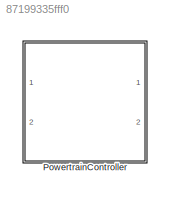
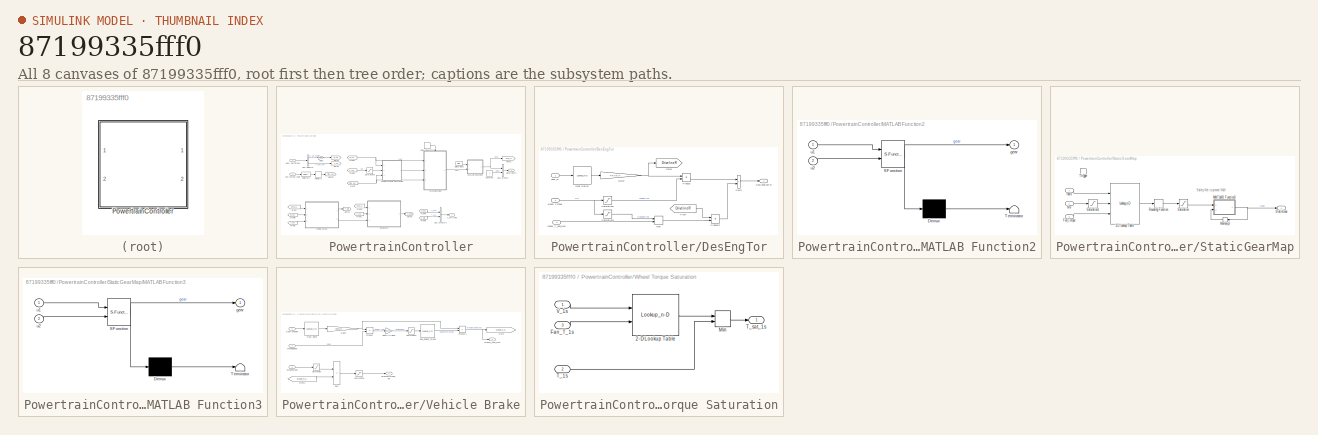
[diagram: thumbnail index - all 8 canvases of the model, root first then tree order]
MODEL slx_87199335fff0
KIND library
CONFIG AbsTol = auto
CONFIG EnableMultiTasking = off
CONFIG FixedStep = auto
CONFIG MaxStep = auto
CONFIG MinStep = auto
CONFIG RelTol = 1e-3
CONFIG SampleTimeConstraint = Unconstrained
CONFIG Solver = VariableStepAuto
CONFIG SolverName = VariableStepAuto
CONFIG StartTime = 0.0
CONFIG StopTime = 10.0
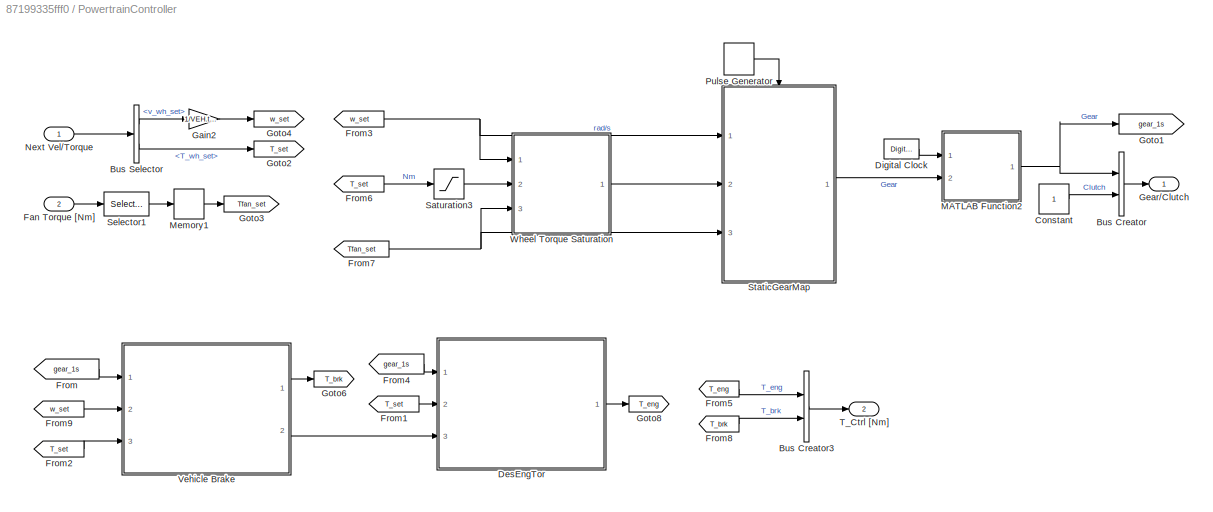
BLOCK [SubSystem] PowertrainController
  Ports = [2, 2]
  RequestExecContextInheritance = off
BLOCK [BusCreator] PowertrainController/Bus Creator
  DisplayOption = bar
  InheritFromInputs = on
  Inputs = Gear,Clutch
  Ports = [2, 1]
BLOCK [BusCreator] PowertrainController/Bus Creator3
  DisplayOption = bar
  InheritFromInputs = on
  Inputs = 2
  Ports = [2, 1]
BLOCK [BusSelector] PowertrainController/Bus Selector
  OutputSignals = v_wh_set,T_wh_set
  Ports = [1, 2]
BLOCK [Constant] PowertrainController/Constant
BLOCK [SubSystem] PowertrainController/DesEngTor
  Ports = [3, 1]
  RequestExecContextInheritance = off
BLOCK [Outport] PowertrainController/DesEngTor/DesiredEngTor
  VectorParamsAs1DForOutWhenUnconnected = off
BLOCK [From] PowertrainController/DesEngTor/From
  GotoTag = DrivelineR
BLOCK [Gain] PowertrainController/DesEngTor/Gain2
  Gain = TRAN.finalDrive
BLOCK [Lookup_n-D] PowertrainController/DesEngTor/Gear Ratios
  BreakpointsForDimension1 = [1:TRAN.numGears]
  ExtrapMethod = Clip
  InternalRulePriority = Speed
  NumberOfTableDimensions = 1
  Ports = [1, 1]
  RndMeth = Simplest
  Table = TRAN.gears
  UseLastTableValue = on
BLOCK [Goto] PowertrainController/DesEngTor/Goto1
  GotoTag = DrivelineR
BLOCK [MinMax] PowertrainController/DesEngTor/Max
  Function = max
  Inputs = 2
  Ports = [2, 1]
BLOCK [Product] PowertrainController/DesEngTor/Product
  Inputs = /*
  Ports = [2, 1]
BLOCK [Product] PowertrainController/DesEngTor/Product3
  Inputs = /*
  Ports = [2, 1]
BLOCK [Saturate] PowertrainController/DesEngTor/Saturation2
  LowerLimit = 0
  UpperLimit = inf
BLOCK [Saturate] PowertrainController/DesEngTor/Saturation3
  LowerLimit = -inf
  UpperLimit = 0
BLOCK [Sum] PowertrainController/DesEngTor/Sum1
  IconShape = rectangular
  Ports = [2, 1]
BLOCK [Inport] PowertrainController/DesEngTor/Wheel_T_eng_Max
  Port = 3
BLOCK [Inport] PowertrainController/DesEngTor/gear_1s
BLOCK [Inport] PowertrainController/DesEngTor/wheel Torque
  Port = 2
BLOCK [DigitalClock] PowertrainController/Digital Clock
BLOCK [Inport] PowertrainController/Fan Torque [Nm]
  Port = 2
BLOCK [From] PowertrainController/From
  GotoTag = gear_1s
BLOCK [From] PowertrainController/From1
  GotoTag = T_set
BLOCK [From] PowertrainController/From2
  GotoTag = T_set
BLOCK [From] PowertrainController/From3
  GotoTag = w_set
BLOCK [From] PowertrainController/From4
  GotoTag = gear_1s
BLOCK [From] PowertrainController/From5
  GotoTag = T_eng
BLOCK [From] PowertrainController/From6
  GotoTag = T_set
BLOCK [From] PowertrainController/From7
  GotoTag = Tfan_set
BLOCK [From] PowertrainController/From8
  GotoTag = T_brk
BLOCK [From] PowertrainController/From9
  GotoTag = w_set
BLOCK [Gain] PowertrainController/Gain2
  Gain = 1/VEH.tireRad
BLOCK [Outport] PowertrainController/Gear//Clutch
  VectorParamsAs1DForOutWhenUnconnected = off
BLOCK [Goto] PowertrainController/Goto1
  GotoTag = gear_1s
BLOCK [Goto] PowertrainController/Goto2
  GotoTag = T_set
BLOCK [Goto] PowertrainController/Goto3
  GotoTag = Tfan_set
BLOCK [Goto] PowertrainController/Goto4
  GotoTag = w_set
BLOCK [Goto] PowertrainController/Goto6
  GotoTag = T_brk
BLOCK [Goto] PowertrainController/Goto8
  GotoTag = T_eng
BLOCK [SubSystem] PowertrainController/MATLAB Function2
  ErrorFcn = Stateflow.Translate.translate
  PermitHierarchicalResolution = ExplicitOnly
  Ports = [2, 1]
  RequestExecContextInheritance = off
  SFBlockType = MATLAB Function
  TreatAsAtomicUnit = on
BLOCK [Demux] PowertrainController/MATLAB Function2/ Demux 
  Outputs = 1
  Ports = [1, 1]
BLOCK [S-Function] PowertrainController/MATLAB Function2/ SFunction 
  EnableBusSupport = on
  FunctionName = sf_sfun
  PortCounts = [2 2]
  Ports = [2, 2]
  SFcnIsStateOwnerBlock = off
  SFunctionDeploymentMode = off
  Tag = Stateflow S-Function 3
BLOCK [Terminator] PowertrainController/MATLAB Function2/ Terminator 
BLOCK [Outport] PowertrainController/MATLAB Function2/gear
  VectorParamsAs1DForOutWhenUnconnected = off
BLOCK [Inport] PowertrainController/MATLAB Function2/u1
BLOCK [Inport] PowertrainController/MATLAB Function2/u2
  Port = 2
BLOCK [Memory] PowertrainController/Memory1
  InheritSampleTime = on
BLOCK [Inport] PowertrainController/Next Vel//Torque
BLOCK [DiscretePulseGenerator] PowertrainController/Pulse Generator
  Period = 7
  Ports = [0, 1]
  PulseType = Time based
BLOCK [Saturate] PowertrainController/Saturation3
  LowerLimit = 0
  UpperLimit = inf
BLOCK [Selector] PowertrainController/Selector1
  IndexOptions = Index vector (dialog)
  Indices = [1]
  InputPortWidth = 1
  OutputSizes = 1
  Ports = [1, 1]
BLOCK [SubSystem] PowertrainController/StaticGearMap
  Ports = [3, 1, 0, 1]
  RequestExecContextInheritance = off
BLOCK [Lookup_n-D] PowertrainController/StaticGearMap/3-D Lookup Table
  BreakpointsForDimension1 = dem_wheel_speed
  BreakpointsForDimension2 = dem_wheel_torque
  BreakpointsForDimension3 = tau_acc
  InternalRulePriority = Speed
  NumberOfTableDimensions = 3
  Ports = [3, 1]
  RndMeth = Simplest
  Table = best_gear
BLOCK [Inport] PowertrainController/StaticGearMap/Fan_Torque
  Port = 3
BLOCK [SubSystem] PowertrainController/StaticGearMap/MATLAB Function3
  ErrorFcn = Stateflow.Translate.translate
  PermitHierarchicalResolution = ExplicitOnly
  Ports = [2, 1]
  RequestExecContextInheritance = off
  SFBlockType = MATLAB Function
  TreatAsAtomicUnit = on
BLOCK [Demux] PowertrainController/StaticGearMap/MATLAB Function3/ Demux 
  Outputs = 1
  Ports = [1, 1]
BLOCK [S-Function] PowertrainController/StaticGearMap/MATLAB Function3/ SFunction 
  EnableBusSupport = on
  FunctionName = sf_sfun
  PortCounts = [2 2]
  Ports = [2, 2]
  SFcnIsStateOwnerBlock = off
  SFunctionDeploymentMode = off
  Tag = Stateflow S-Function 8
BLOCK [Terminator] PowertrainController/StaticGearMap/MATLAB Function3/ Terminator 
BLOCK [Outport] PowertrainController/StaticGearMap/MATLAB Function3/gear
  VectorParamsAs1DForOutWhenUnconnected = off
BLOCK [Inport] PowertrainController/StaticGearMap/MATLAB Function3/u1
BLOCK [Inport] PowertrainController/StaticGearMap/MATLAB Function3/u2
  Port = 2
BLOCK [Memory] PowertrainController/StaticGearMap/Memory3
  InheritSampleTime = on
  InitialCondition = 11
BLOCK [Inport] PowertrainController/StaticGearMap/Nm
  Port = 2
BLOCK [Rounding] PowertrainController/StaticGearMap/Rounding Function
  Operator = round
BLOCK [Saturate] PowertrainController/StaticGearMap/Saturation
  LowerLimit = 1
  UpperLimit = 12
BLOCK [Saturate] PowertrainController/StaticGearMap/Saturation1
  LowerLimit = 0
  UpperLimit = inf
BLOCK [Outport] PowertrainController/StaticGearMap/StaticGear
  VectorParamsAs1DForOutWhenUnconnected = off
BLOCK [TriggerPort] PowertrainController/StaticGearMap/Trigger
  PortDimensions = 1
  Ports = []
  StatesWhenEnabling = held
  VariantControl = Variant
BLOCK [Inport] PowertrainController/StaticGearMap/rad//s
BLOCK [Outport] PowertrainController/T_Ctrl [Nm]
  Port = 2
  VectorParamsAs1DForOutWhenUnconnected = off
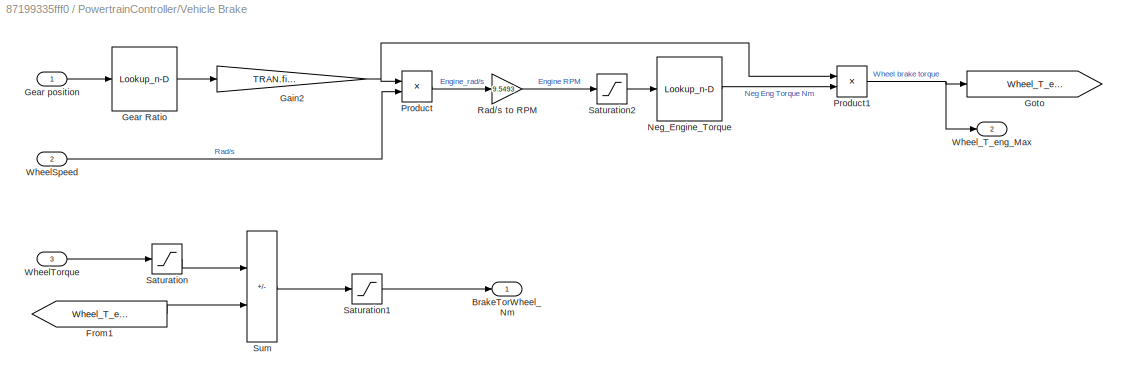
BLOCK [SubSystem] PowertrainController/Vehicle Brake
  Ports = [3, 2]
  RequestExecContextInheritance = off
BLOCK [Outport] PowertrainController/Vehicle Brake/BrakeTorWheel_Nm
  VectorParamsAs1DForOutWhenUnconnected = off
BLOCK [From] PowertrainController/Vehicle Brake/From1
  GotoTag = Wheel_T_eng_Max
BLOCK [Gain] PowertrainController/Vehicle Brake/Gain2
  Gain = TRAN.finalDrive
BLOCK [Lookup_n-D] PowertrainController/Vehicle Brake/Gear Ratio
  BreakpointsForDimension1 = [1 2 3 4 5 6 7 8 9 10 11 12]
  BreakpointsForDimension2 = [1:3]
  InternalRulePriority = Speed
  NumberOfTableDimensions = 1
  Ports = [1, 1]
  RndMeth = Simplest
  Table = [11.73 9.21 7.09 5.57 4.34 3.41 2.69 2.12 1.63 1.28 1 0.7850]
BLOCK [Inport] PowertrainController/Vehicle Brake/Gear position
BLOCK [Goto] PowertrainController/Vehicle Brake/Goto
  GotoTag = Wheel_T_eng_Max
BLOCK [Lookup_n-D] PowertrainController/Vehicle Brake/Neg_Engine_Torque
  BreakpointsForDimension1 = Neg_RPM
  BreakpointsForDimension2 = [1:3]
  InternalRulePriority = Speed
  NumberOfTableDimensions = 1
  Ports = [1, 1]
  RndMeth = Simplest
  Table = Neg_T_eng_Nm
BLOCK [Product] PowertrainController/Vehicle Brake/Product
  Ports = [2, 1]
BLOCK [Product] PowertrainController/Vehicle Brake/Product1
  Ports = [2, 1]
BLOCK [Gain] PowertrainController/Vehicle Brake/Rad//s to RPM
  Gain = 9.5493
BLOCK [Saturate] PowertrainController/Vehicle Brake/Saturation
  LowerLimit = -inf
  UpperLimit = 0
BLOCK [Saturate] PowertrainController/Vehicle Brake/Saturation1
  LowerLimit = 0
  UpperLimit = inf
BLOCK [Saturate] PowertrainController/Vehicle Brake/Saturation2
  LowerLimit = 0
  UpperLimit = 2100
BLOCK [Sum] PowertrainController/Vehicle Brake/Sum
  IconShape = rectangular
  Inputs = -+
  Ports = [2, 1]
BLOCK [Inport] PowertrainController/Vehicle Brake/WheelSpeed
  Port = 2
BLOCK [Inport] PowertrainController/Vehicle Brake/WheelTorque
  Port = 3
BLOCK [Outport] PowertrainController/Vehicle Brake/Wheel_T_eng_Max
  Port = 2
  VectorParamsAs1DForOutWhenUnconnected = off
BLOCK [SubSystem] PowertrainController/Wheel Torque Saturation
  Ports = [3, 1]
  RequestExecContextInheritance = off
BLOCK [Lookup_n-D] PowertrainController/Wheel Torque Saturation/2-D Lookup Table
  BreakpointsForDimension1 = dem_wheel_speed
  BreakpointsForDimension2 = tau_acc
  InternalRulePriority = Speed
  Ports = [2, 1]
  RndMeth = Simplest
  Table = WheelTorque_Max'
BLOCK [Inport] PowertrainController/Wheel Torque Saturation/Fan_T_1s
  Port = 3
BLOCK [MinMax] PowertrainController/Wheel Torque Saturation/Min
  Inputs = 2
  Ports = [2, 1]
BLOCK [Inport] PowertrainController/Wheel Torque Saturation/T_1s
  Port = 2
BLOCK [Outport] PowertrainController/Wheel Torque Saturation/T_sat_1s
  VectorParamsAs1DForOutWhenUnconnected = off
BLOCK [Inport] PowertrainController/Wheel Torque Saturation/V_1s
ANNOTATION PowertrainController/StaticGearMap: Safety Net to prevent NaN
LINE PowertrainController/Bus Creator3:1 -> PowertrainController/T_Ctrl [Nm]:1
LINE PowertrainController/Bus Creator:1 -> PowertrainController/Gear//Clutch:1
LINE PowertrainController/Bus Selector:1 -> PowertrainController/Gain2:1
LINE PowertrainController/Bus Selector:2 -> PowertrainController/Goto2:1
LINE PowertrainController/Constant:1 -> PowertrainController/Bus Creator:2
LINE PowertrainController/DesEngTor/From:1 -> PowertrainController/DesEngTor/Product3:1
NET PowertrainController/DesEngTor/Gain2:1 -> PowertrainController/DesEngTor/Goto1:1, PowertrainController/DesEngTor/Product:1
LINE PowertrainController/DesEngTor/Gear Ratios:1 -> PowertrainController/DesEngTor/Gain2:1
LINE PowertrainController/DesEngTor/Max:1 -> PowertrainController/DesEngTor/Product3:2
LINE PowertrainController/DesEngTor/Product3:1 -> PowertrainController/DesEngTor/Sum1:2
LINE PowertrainController/DesEngTor/Product:1 -> PowertrainController/DesEngTor/Sum1:1
LINE PowertrainController/DesEngTor/Saturation2:1 -> PowertrainController/DesEngTor/Product:2
LINE PowertrainController/DesEngTor/Saturation3:1 -> PowertrainController/DesEngTor/Max:1
LINE PowertrainController/DesEngTor/Sum1:1 -> PowertrainController/DesEngTor/DesiredEngTor:1
LINE PowertrainController/DesEngTor/Wheel_T_eng_Max:1 -> PowertrainController/DesEngTor/Max:2
LINE PowertrainController/DesEngTor/gear_1s:1 -> PowertrainController/DesEngTor/Gear Ratios:1
NET PowertrainController/DesEngTor/wheel Torque:1 -> PowertrainController/DesEngTor/Saturation2:1, PowertrainController/DesEngTor/Saturation3:1
LINE PowertrainController/DesEngTor:1 -> PowertrainController/Goto8:1
LINE PowertrainController/Digital Clock:1 -> PowertrainController/MATLAB Function2:1
LINE PowertrainController/Fan Torque [Nm]:1 -> PowertrainController/Selector1:1
LINE PowertrainController/From1:1 -> PowertrainController/DesEngTor:2
LINE PowertrainController/From2:1 -> PowertrainController/Vehicle Brake:3
NET PowertrainController/From3:1 -> PowertrainController/StaticGearMap:1, PowertrainController/Wheel Torque Saturation:1
LINE PowertrainController/From4:1 -> PowertrainController/DesEngTor:1
LINE PowertrainController/From5:1 -> PowertrainController/Bus Creator3:1
LINE PowertrainController/From6:1 -> PowertrainController/Saturation3:1
NET PowertrainController/From7:1 -> PowertrainController/StaticGearMap:3, PowertrainController/Wheel Torque Saturation:3
LINE PowertrainController/From8:1 -> PowertrainController/Bus Creator3:2
LINE PowertrainController/From9:1 -> PowertrainController/Vehicle Brake:2
LINE PowertrainController/From:1 -> PowertrainController/Vehicle Brake:1
LINE PowertrainController/Gain2:1 -> PowertrainController/Goto4:1
NET PowertrainController/MATLAB Function2:1 -> PowertrainController/Bus Creator:1, PowertrainController/Goto1:1
LINE PowertrainController/Memory1:1 -> PowertrainController/Goto3:1
LINE PowertrainController/Next Vel//Torque:1 -> PowertrainController/Bus Selector:1
LINE PowertrainController/Pulse Generator:1 -> PowertrainController/StaticGearMap:trigger
LINE PowertrainController/Saturation3:1 -> PowertrainController/Wheel Torque Saturation:2
LINE PowertrainController/Selector1:1 -> PowertrainController/Memory1:1
LINE PowertrainController/StaticGearMap/3-D Lookup Table:1 -> PowertrainController/StaticGearMap/Rounding Function:1
LINE PowertrainController/StaticGearMap/Fan_Torque:1 -> PowertrainController/StaticGearMap/3-D Lookup Table:3
NET PowertrainController/StaticGearMap/MATLAB Function3:1 -> PowertrainController/StaticGearMap/Memory3:1, PowertrainController/StaticGearMap/StaticGear:1
LINE PowertrainController/StaticGearMap/Memory3:1 -> PowertrainController/StaticGearMap/MATLAB Function3:2
LINE PowertrainController/StaticGearMap/Nm:1 -> PowertrainController/StaticGearMap/Saturation1:1
LINE PowertrainController/StaticGearMap/Rounding Function:1 -> PowertrainController/StaticGearMap/Saturation:1
LINE PowertrainController/StaticGearMap/Saturation1:1 -> PowertrainController/StaticGearMap/3-D Lookup Table:2
LINE PowertrainController/StaticGearMap/Saturation:1 -> PowertrainController/StaticGearMap/MATLAB Function3:1
LINE PowertrainController/StaticGearMap/rad//s:1 -> PowertrainController/StaticGearMap/3-D Lookup Table:1
LINE PowertrainController/StaticGearMap:1 -> PowertrainController/MATLAB Function2:2
LINE PowertrainController/Vehicle Brake/From1:1 -> PowertrainController/Vehicle Brake/Sum:2
NET PowertrainController/Vehicle Brake/Gain2:1 -> PowertrainController/Vehicle Brake/Product1:1, PowertrainController/Vehicle Brake/Product:1
LINE PowertrainController/Vehicle Brake/Gear Ratio:1 -> PowertrainController/Vehicle Brake/Gain2:1
LINE PowertrainController/Vehicle Brake/Gear position:1 -> PowertrainController/Vehicle Brake/Gear Ratio:1
LINE PowertrainController/Vehicle Brake/Neg_Engine_Torque:1 -> PowertrainController/Vehicle Brake/Product1:2
NET PowertrainController/Vehicle Brake/Product1:1 -> PowertrainController/Vehicle Brake/Goto:1, PowertrainController/Vehicle Brake/Wheel_T_eng_Max:1
LINE PowertrainController/Vehicle Brake/Product:1 -> PowertrainController/Vehicle Brake/Rad//s to RPM:1
LINE PowertrainController/Vehicle Brake/Rad//s to RPM:1 -> PowertrainController/Vehicle Brake/Saturation2:1
LINE PowertrainController/Vehicle Brake/Saturation1:1 -> PowertrainController/Vehicle Brake/BrakeTorWheel_Nm:1
LINE PowertrainController/Vehicle Brake/Saturation2:1 -> PowertrainController/Vehicle Brake/Neg_Engine_Torque:1
LINE PowertrainController/Vehicle Brake/Saturation:1 -> PowertrainController/Vehicle Brake/Sum:1
LINE PowertrainController/Vehicle Brake/Sum:1 -> PowertrainController/Vehicle Brake/Saturation1:1
LINE PowertrainController/Vehicle Brake/WheelSpeed:1 -> PowertrainController/Vehicle Brake/Product:2
LINE PowertrainController/Vehicle Brake/WheelTorque:1 -> PowertrainController/Vehicle Brake/Saturation:1
LINE PowertrainController/Vehicle Brake:1 -> PowertrainController/Goto6:1
LINE PowertrainController/Vehicle Brake:2 -> PowertrainController/DesEngTor:3
LINE PowertrainController/Wheel Torque Saturation/2-D Lookup Table:1 -> PowertrainController/Wheel Torque Saturation/Min:1
LINE PowertrainController/Wheel Torque Saturation/Fan_T_1s:1 -> PowertrainController/Wheel Torque Saturation/2-D Lookup Table:2
LINE PowertrainController/Wheel Torque Saturation/Min:1 -> PowertrainController/Wheel Torque Saturation/T_sat_1s:1
LINE PowertrainController/Wheel Torque Saturation/T_1s:1 -> PowertrainController/Wheel Torque Saturation/Min:2
LINE PowertrainController/Wheel Torque Saturation/V_1s:1 -> PowertrainController/Wheel Torque Saturation/2-D Lookup Table:1
LINE PowertrainController/Wheel Torque Saturation:1 -> PowertrainController/StaticGearMap:2
note: NET lines group one-source signal fan-out (src -> all destinations, sorted); 1:1 wires keep LINE
CHART PowertrainController/StaticGearMap/MATLAB Function3 states=1 transitions=1
  STATE_LABEL 'eML_blk_kernel()'
  STATE_LABEL 'SCRIPT:\nfunction gear = fcn(u1, u2)\nif isnan(u1)\n    gear=u2;\nelse\n    gear=u1;\nend\n\n'
CHART PowertrainController/MATLAB Function2 states=1 transitions=1
  STATE_LABEL 'eML_blk_kernel()'
  STATE_LABEL 'SCRIPT:\nfunction gear = fcn(u1, u2)\nif u1 <= 7 \n    gear=11;\nelse\n    gear=u2;\nend\n\n'
CHART  states=0 transitions=0
CHART  states=0 transitions=0
